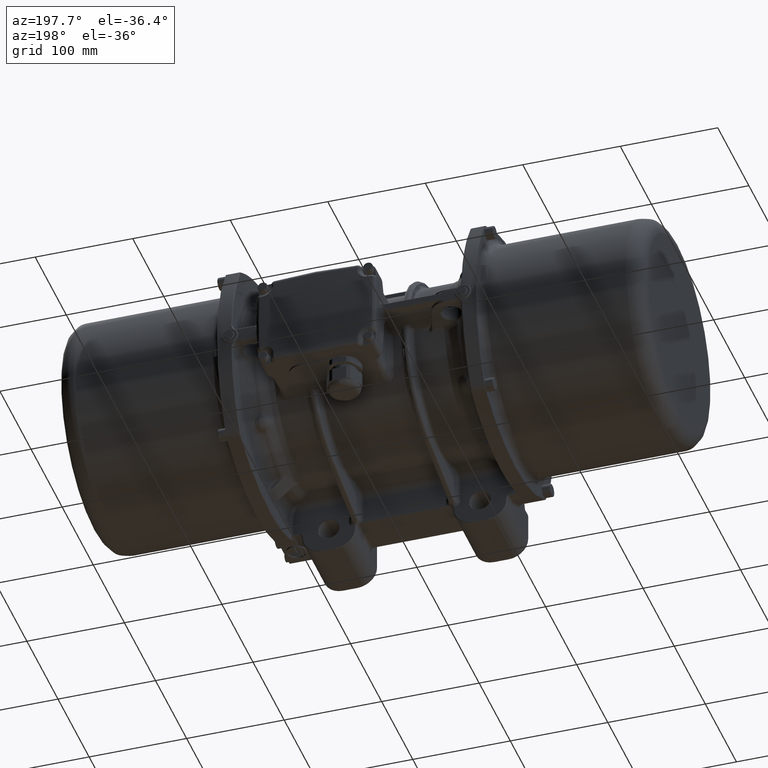
[diagram: clean part render]
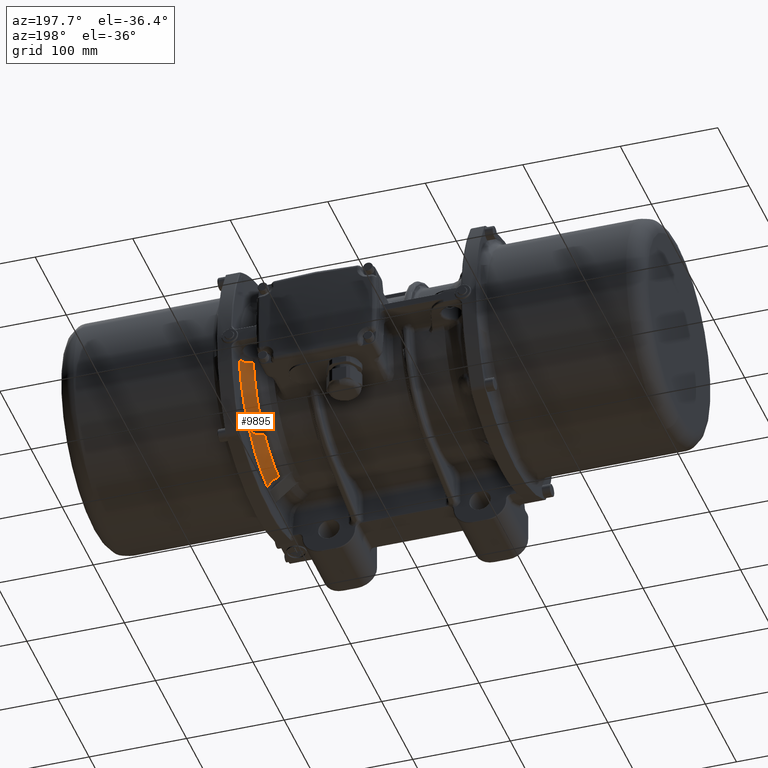
[diagram: same view with one face highlighted and labeled with its STEP entity id]
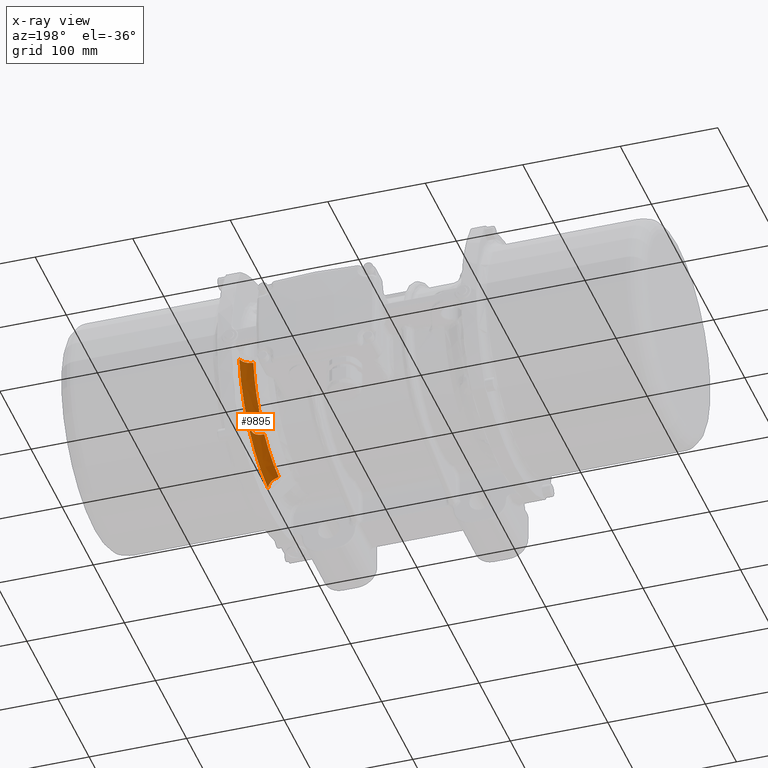
[diagram: x-ray of the same camera — body ghosted, the highlighted face saturated]
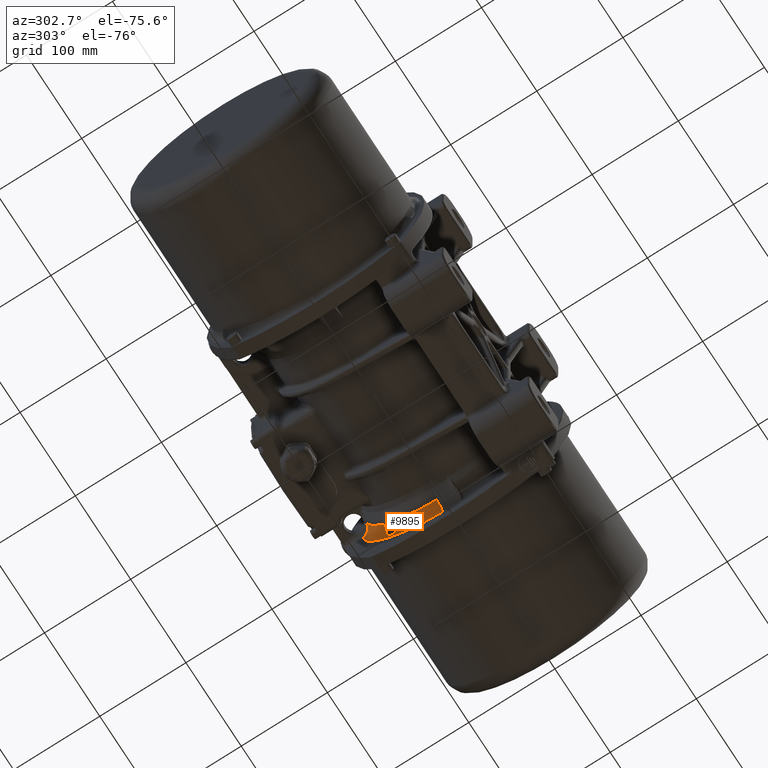
[diagram: same view with one face highlighted and labeled with its STEP entity id]
A machine part, auxiliary view. The second image highlights one B-rep face of the part: STEP entity #9895.
The next image is the same camera in x-ray: the body ghosted, the highlighted face saturated — about 0% of this face is hidden behind the body in this view.
A second angle (auxiliary view) of the same face is appended — the face is thin or edge-on in the first view.
In plain terms, the highlighted face is a freeform B-spline surface patch.
Its self-contained STEP definition (entity closure, byte-faithful):
#1053 = CARTESIAN_POINT ( 'NONE',  ( 113.2085367234987400, 12.72865508729004200, -97.77179666987382200 ) ) ;
#1216 = CARTESIAN_POINT ( 'NONE',  ( 115.6924195683543500, 12.85327116650494300, -101.5199832170023900 ) ) ;
#1306 = CARTESIAN_POINT ( 'NONE',  ( 115.0456479404417800, 66.46062155296611700, -76.08826538670540200 ) ) ;
#1793 = CARTESIAN_POINT ( 'NONE',  ( 115.4849371191992600, 67.91186726987470500, -75.92472277408859300 ) ) ;
#2041 = CARTESIAN_POINT ( 'NONE',  ( 116.5093884172309400, 12.89488209607921100, -104.4604505442959900 ) ) ;
#2284 = CARTESIAN_POINT ( 'NONE',  ( 116.0474154033128100, 71.34345714017104000, -74.68435912109596600 ) ) ;
#2524 = CARTESIAN_POINT ( 'NONE',  ( 112.4092689090385400, 12.70327555940107300, -97.02894738893010600 ) ) ;
#2767 = CARTESIAN_POINT ( 'NONE',  ( 109.2755947239767200, 59.78215694567543200, -74.99673937552256600 ) ) ;
#3247 = CARTESIAN_POINT ( 'NONE',  ( 115.2688622111241900, 67.14688110532209500, -76.02885295002546700 ) ) ;
#3724 = CARTESIAN_POINT ( 'NONE',  ( 115.8159773696523900, 75.51223875635831500, -69.51453560806702100 ) ) ;
#4136 = CARTESIAN_POINT ( 'NONE',  ( 107.1583161602825700, 59.06724688568512200, -74.72004599217388000 ) ) ;
#4216 = CARTESIAN_POINT ( 'NONE',  ( 115.8636785207333600, 75.40823012876991500, -69.81028979120434000 ) ) ;
#4466 = ORIENTED_EDGE ( 'NONE', *, *, #85909, .T. ) ;
#4706 = CARTESIAN_POINT ( 'NONE',  ( 113.0649028377313500, 75.82997643362095600, -62.78956955020832700 ) ) ;
#4771 = EDGE_CURVE ( 'NONE', #44368, #133070, #99168, .T. ) ;
#5030 = CARTESIAN_POINT ( 'NONE',  ( 109.8470326065824600, 95.33692520156785100, -12.78177568346776200 ) ) ;
#5200 = CARTESIAN_POINT ( 'NONE',  ( 112.8254671477698300, 75.77204018844743400, -62.49833559921073300 ) ) ;
#5393 = CARTESIAN_POINT ( 'NONE',  ( 116.6257580498605900, 105.6215036488068100, -13.46689872205086000 ) ) ;
#5523 = CARTESIAN_POINT ( 'NONE',  ( 105.7689292740000000, 94.20100722612170300, -12.70180587100849900 ) ) ;
#6019 = CARTESIAN_POINT ( 'NONE',  ( 115.6424288836742800, 101.3613632643896800, -13.19104417543176800 ) ) ;
#6522 = CARTESIAN_POINT ( 'NONE',  ( 107.1562485861531000, 94.39282680412279100, -12.71527441519379800 ) ) ;
#9895 = ADVANCED_FACE ( 'NONE', ( #33794 ), #98326, .T. ) ;
#11273 = CARTESIAN_POINT ( 'NONE',  ( 105.7689292740000400, 88.93135557700003300, -56.91446322899994900 ) ) ;
#11956 = CARTESIAN_POINT ( 'NONE',  ( 114.7845956682419800, 12.79629536098067900, -99.77732269074246600 ) ) ;
#12077 = EDGE_CURVE ( 'NONE', #32801, #77992, #80910, .T. ) ;
#12135 = CARTESIAN_POINT ( 'NONE',  ( 105.7689292740021900, 58.91350817186379600, -74.59466595998678400 ) ) ;
#12201 = CARTESIAN_POINT ( 'NONE',  ( 108.5672064910065200, 59.48614578480062700, -74.88438280080382000 ) ) ;
#12227 = VERTEX_POINT ( 'NONE', #60309 ) ;
#12432 = CARTESIAN_POINT ( 'NONE',  ( 109.5303393805830000, 12.63948486153464200, -95.20720641703459800 ) ) ;
#12438 = CARTESIAN_POINT ( 'NONE',  ( 116.6027746082115800, 12.82512133828957500, -105.2888057834025100 ) ) ;
#12677 = CARTESIAN_POINT ( 'NONE',  ( 114.2541623087342500, 64.63473359228929400, -76.07135131617501100 ) ) ;
#12920 = CARTESIAN_POINT ( 'NONE',  ( 112.4847631750245500, 12.70551229194114600, -97.09381825067711700 ) ) ;
#13173 = CARTESIAN_POINT ( 'NONE',  ( 112.7046624295041800, 62.36656981459183400, -75.74271043524790100 ) ) ;
#13658 = CARTESIAN_POINT ( 'NONE',  ( 113.5254066517639700, 63.41199090695394600, -75.93617967251495300 ) ) ;
#14161 = CARTESIAN_POINT ( 'NONE',  ( 114.4438493133447600, 65.01203154947464200, -76.09370081247432400 ) ) ;
#14657 = CARTESIAN_POINT ( 'NONE',  ( 112.8281475307411300, 62.50912698928762300, -75.77266145912761900 ) ) ;
#14931 = B_SPLINE_CURVE_WITH_KNOTS ( 'NONE', 3,
 ( #5523, #142749, #6522, #63149, #62182, #27860, #39802, #130798, #74599, #16893, #141762, #5030, #143725, #64123, #107886, #17908, #120860, #98004, #40302, #108377, #84570, #85054, #97506, #28341, #40796, #29343, #74116, #51198, #96511, #86550, #96027, #119374, #75093, #107385, #119871, #16412, #62666, #6019, #130301, #39304, #29833, #118885, #50708, #51703, #73621, #85552, #17400, #97009, #143234, #120371, #108877, #28845 ),
 .UNSPECIFIED., .F., .F.,
 ( 4, 2, 2, 2, 1, 1, 1, 2, 2, 2, 2, 2, 1, 1, 1, 1, 2, 2, 2, 2, 2, 1, 1, 1, 1, 1, 2, 2, 2, 2, 2, 4 ),
 ( 0.0000000000000000000, 0.1250000000002855800, 0.1875000000004271900, 0.2187500000004976000, 0.2343750000005332700, 0.2421875000005495300, 0.2460937500005560800, 0.2480468750005604400, 0.2500000000005647700, 0.3750000000007054900, 0.4375000000007758800, 0.4687500000008101900, 0.4843750000008272800, 0.4921875000008350000, 0.4960937500008372700, 0.4980468750008376600, 0.4990234375008386100, 0.5000000000008395500, 0.6250000000008016900, 0.6875000000007810400, 0.7187500000007692700, 0.7343750000007629500, 0.7421875000007611700, 0.7460937500007606100, 0.7480468750007602800, 0.7490234375007596100, 0.7495117187507588400, 0.7500000000007580600, 0.8125000000005686600, 0.8750000000003791400, 0.9375000000001896300, 1.000000000000000000 ),
 .UNSPECIFIED. ) ;
#15162 = CARTESIAN_POINT ( 'NONE',  ( 113.5670643927831800, 75.94420365115452400, -63.48404219876263700 ) ) ;
#15639 = CARTESIAN_POINT ( 'NONE',  ( 113.3460045639169200, 75.89480512416014300, -63.16915160495476300 ) ) ;
#16103 = CARTESIAN_POINT ( 'NONE',  ( 114.4998661867530700, 76.09871464139669700, -65.12945061224992600 ) ) ;
#16412 = CARTESIAN_POINT ( 'NONE',  ( 115.5275435704971200, 101.1034935440168900, -13.17398092070036600 ) ) ;
#16578 = CARTESIAN_POINT ( 'NONE',  ( 116.1025441643357000, 74.21673444920554600, -72.07944309839938100 ) ) ;
#16893 = CARTESIAN_POINT ( 'NONE',  ( 109.7434384849688200, 95.28746547247519100, -12.77831076783435200 ) ) ;
#17065 = CARTESIAN_POINT ( 'NONE',  ( 113.8268354104330800, 75.99863422134265500, -63.88314257038702200 ) ) ;
#17400 = CARTESIAN_POINT ( 'NONE',  ( 116.4107861003408600, 103.7980840325082300, -13.35109184378053900 ) ) ;
#17908 = CARTESIAN_POINT ( 'NONE',  ( 111.0774208347199400, 95.99593046183598200, -12.82768450117422500 ) ) ;
#18666 = EDGE_CURVE ( 'NONE', #12227, #86732, #124592, .T. ) ;
#20768 = CARTESIAN_POINT ( 'NONE',  ( 116.2344376878094000, 12.90429581700630000, -103.1128774080502000 ) ) ;
#22214 = CARTESIAN_POINT ( 'NONE',  ( 116.6257580500000000, 105.7251378879999900, -12.62753394200000100 ) ) ;
#22769 = DIRECTION ( 'NONE',  ( 1.000000000000000000, -3.426983195025550000E-016, 3.449907649820270100E-016 ) ) ;
#23203 = CARTESIAN_POINT ( 'NONE',  ( 112.0235396610000200, 89.48572141499997200, -57.26924736400004400 ) ) ;
#24138 = CARTESIAN_POINT ( 'NONE',  ( 115.2624608765040900, 67.12577550240770600, -76.03119903056175100 ) ) ;
#24212 = DIRECTION ( 'NONE',  ( 1.000000000000000000, -3.426983195025550000E-016, 3.449907649820270100E-016 ) ) ;
#24365 = CARTESIAN_POINT ( 'NONE',  ( 109.7604735408194600, 12.64318762108856100, -95.31204990280501500 ) ) ;
#24611 = CARTESIAN_POINT ( 'NONE',  ( 115.1795187826581800, 66.85945864617133300, -76.05828591884242900 ) ) ;
#24840 = CARTESIAN_POINT ( 'NONE',  ( 111.3945241644545100, 12.67555917642235600, -96.23355780519580100 ) ) ;
#24848 = CARTESIAN_POINT ( 'NONE',  ( 116.2344376878094000, 12.90429581700630000, -103.1128774080502000 ) ) ;
#25106 = CARTESIAN_POINT ( 'NONE',  ( 116.1236974356189600, 72.53527995079718900, -73.86844604917391200 ) ) ;
#25622 = CARTESIAN_POINT ( 'NONE',  ( 115.7558101056249300, 69.17307313481315100, -75.62050430452340800 ) ) ;
#26103 = CARTESIAN_POINT ( 'NONE',  ( 113.7364512477582000, 63.73093005205968400, -75.98192202396492700 ) ) ;
#26575 = CARTESIAN_POINT ( 'NONE',  ( 115.3347716342272800, 76.00185483477605400, -67.37014132495293900 ) ) ;
#27062 = CARTESIAN_POINT ( 'NONE',  ( 115.7266801116852500, 75.67627870602014200, -69.00296011884410100 ) ) ;
#27266 = EDGE_CURVE ( 'NONE', #67572, #107022, #14931, .T. ) ;
#27545 = CARTESIAN_POINT ( 'NONE',  ( 115.4845978186283900, 75.91837939330386600, -67.92162117050381200 ) ) ;
#27666 = VERTEX_POINT ( 'NONE', #37664 ) ;
#27860 = CARTESIAN_POINT ( 'NONE',  ( 109.0507503462777400, 94.98679808546023700, -12.75717342948315800 ) ) ;
#27928 = EDGE_CURVE ( 'NONE', #44368, #107022, #74552, .T. ) ;
#28024 = CARTESIAN_POINT ( 'NONE',  ( 114.7748249885918500, 76.11037743069667300, -65.75009837381352900 ) ) ;
#28341 = CARTESIAN_POINT ( 'NONE',  ( 113.2801233700984500, 97.82137108371992400, -12.95358794925820000 ) ) ;
#28516 = CARTESIAN_POINT ( 'NONE',  ( 114.1181769681526100, 76.05310059519209200, -64.37103859994928700 ) ) ;
#28781 = CARTESIAN_POINT ( 'NONE',  ( 116.0687269963381300, 12.88576234739231600, -102.5310901904489900 ) ) ;
#28845 = CARTESIAN_POINT ( 'NONE',  ( 116.6257580498605900, 105.6215036488068100, -13.46689872205086000 ) ) ;
#28945 = B_SPLINE_CURVE_WITH_KNOTS ( 'NONE', 3,
 ( #68407, #12201, #2767, #80798, #126099, #81281, #104171, #70869, #82781, #128055, #138472, #69382, #36553, #13173, #14657, #139461, #57946, #48435, #92271, #13658, #26103, #58424, #82282, #12677, #137481, #92761, #36065, #14161, #94236, #59899, #70373, #1306, #116103, #24611, #105647, #71362, #24138, #3247, #103676, #1793, #93739, #35566, #115111, #37516, #25622, #46950, #81785, #69887, #137975, #115599, #93253, #126588, #47932, #46455, #2284, #47433, #127084, #58914, #25106, #127568, #59418, #138964, #105158, #37049, #116590, #16578, #49419, #84258, #129991, #71860, #118084, #96194, #84741, #108058, #4216, #106117, #3724, #60379, #141441, #140434, #27062, #61862, #83282, #27545, #117087, #39482, #26575, #106595, #85229, #117585, #60869, #95214, #28024, #38014, #96695, #38497, #16103, #107564, #72335, #28516, #17065, #141936, #15162, #73310, #83768, #15639, #4706, #5200, #119057, #49890, #50885, #130481, #107084, #129017, #129502, #61369, #140931, #72812, #94723 ),
 .UNSPECIFIED., .F., .F.,
 ( 4, 2, 2, 2, 2, 2, 2, 2, 2, 2, 2, 2, 1, 2, 2, 2, 2, 1, 1, 2, 2, 2, 2, 1, 2, 2, 2, 2, 1, 2, 2, 2, 2, 2, 2, 2, 2, 2, 2, 2, 1, 1, 2, 2, 2, 2, 1, 2, 2, 2, 2, 1, 2, 2, 2, 2, 2, 2, 2, 2, 2, 2, 2, 4 ),
 ( 0.0000000000000000000, 0.06250000000001906800, 0.09375000000002922700, 0.1093750000000342100, 0.1171875000000366900, 0.1250000000000391900, 0.1562500000000503500, 0.1718750000000554000, 0.1796875000000577900, 0.1875000000000601700, 0.2187500000000675600, 0.2343750000000715500, 0.2421875000000728300, 0.2460937500000729400, 0.2500000000000730500, 0.2812500000000788800, 0.2968750000000825500, 0.3046875000000843800, 0.3085937500000853200, 0.3105468750000853800, 0.3125000000000853800, 0.3437500000000937000, 0.3593750000000980900, 0.3671875000000997500, 0.3710937500001001400, 0.3750000000001004800, 0.4062500000000975900, 0.4218750000000957000, 0.4296875000000942600, 0.4335937500000943100, 0.4375000000000943700, 0.4687500000000923200, 0.4843750000000916500, 0.5000000000000909300, 0.5312500000000895900, 0.5468750000000893700, 0.5546875000000893700, 0.5625000000000894800, 0.5937500000000905900, 0.6093750000000909300, 0.6171875000000909300, 0.6210937500000908200, 0.6230468750000912600, 0.6250000000000917000, 0.6562500000000838200, 0.6718750000000804900, 0.6796875000000780500, 0.6835937500000773800, 0.6875000000000766100, 0.7187500000000688300, 0.7343750000000649500, 0.7421875000000625100, 0.7460937500000611700, 0.7500000000000599500, 0.7812500000000526200, 0.7968750000000490700, 0.8046875000000477400, 0.8125000000000465200, 0.8437500000000379700, 0.8593750000000341900, 0.8671875000000322000, 0.8750000000000302000, 0.9375000000000151000, 1.000000000000000000 ),
 .UNSPECIFIED. ) ;
#29343 = CARTESIAN_POINT ( 'NONE',  ( 113.3215757606464700, 97.86466865347675500, -12.95654566168301800 ) ) ;
#29833 = CARTESIAN_POINT ( 'NONE',  ( 115.6745987745119500, 101.4361838598185400, -13.19598401251730400 ) ) ;
#31205 = CARTESIAN_POINT ( 'NONE',  ( 105.7689292740021900, 74.59466595994729200, -58.91350817194519600 ) ) ;
#32801 = VERTEX_POINT ( 'NONE', #124664 ) ;
#32881 = CARTESIAN_POINT ( 'NONE',  ( 107.8305861490124000, 74.79846439196440100, -59.26712605697180400 ) ) ;
#33182 = CARTESIAN_POINT ( 'NONE',  ( 107.8305861490210000, 59.26712605695300300, -74.79846439194059800 ) ) ;
#33375 = CARTESIAN_POINT ( 'NONE',  ( 105.7689292740021900, 74.59466595994729200, -58.91350817194519600 ) ) ;
#33794 = FACE_OUTER_BOUND ( 'NONE', #70185, .T. ) ;
#35122 = CARTESIAN_POINT ( 'NONE',  ( 116.3517142660000300, 59.36961864100003100, -94.14424282999999600 ) ) ;
#35186 = DIRECTION ( 'NONE',  ( 2.919995480118922800E-016, 0.0000000000000000000, -1.000000000000000000 ) ) ;
#35319 = CARTESIAN_POINT ( 'NONE',  ( 114.8138338253094600, 12.79784466844543400, -99.82401984490626000 ) ) ;
#35566 = CARTESIAN_POINT ( 'NONE',  ( 115.6506061505663800, 68.63780164360230200, -75.76744599624073800 ) ) ;
#35617 = CARTESIAN_POINT ( 'NONE',  ( 105.7689292740000000, 10.64331759200000100, -94.45573262300000300 ) ) ;
#36065 = CARTESIAN_POINT ( 'NONE',  ( 114.4238591711014000, 64.97085001496333200, -76.09171400721673700 ) ) ;
#36304 = CARTESIAN_POINT ( 'NONE',  ( 112.4043647564856900, 12.70313107393272900, -97.02476239694236400 ) ) ;
#36553 = CARTESIAN_POINT ( 'NONE',  ( 112.3232694777879200, 61.94929365967132600, -75.64998058362908800 ) ) ;
#37049 = CARTESIAN_POINT ( 'NONE',  ( 116.1305681046803100, 73.75530096276001800, -72.68324188010974800 ) ) ;
#37516 = CARTESIAN_POINT ( 'NONE',  ( 115.7311565911732300, 69.04015691353268400, -75.65995820462691800 ) ) ;
#37664 = CARTESIAN_POINT ( 'NONE',  ( 105.7689292740000000, 12.60397677399866200, -94.21414651869560000 ) ) ;
#38014 = CARTESIAN_POINT ( 'NONE',  ( 114.6606855100158800, 76.10829844855403800, -65.48346299855009500 ) ) ;
#38497 = CARTESIAN_POINT ( 'NONE',  ( 114.5410735248992800, 76.10186480191094900, -65.21776630305612300 ) ) ;
#39238 = CARTESIAN_POINT ( 'NONE',  ( 116.1573921100688600, 12.89509911121240300, -102.8219270184189800 ) ) ;
#39304 = CARTESIAN_POINT ( 'NONE',  ( 115.6705943044634600, 101.4268030982193800, -13.19536496080861600 ) ) ;
#39482 = CARTESIAN_POINT ( 'NONE',  ( 115.3743934227063300, 75.98352403965208200, -67.50867925239411700 ) ) ;
#39802 = CARTESIAN_POINT ( 'NONE',  ( 109.2201147299977500, 95.05522321280739100, -12.76199464769679700 ) ) ;
#40302 = CARTESIAN_POINT ( 'NONE',  ( 112.6591078575383000, 97.21971924051897000, -12.91230643836823700 ) ) ;
#40796 = CARTESIAN_POINT ( 'NONE',  ( 113.3091546373248700, 97.85165365542431500, -12.95565678200214800 ) ) ;
#41744 = AXIS2_PLACEMENT_3D ( 'NONE', #84352, #24212, #138554 ) ;
#44275 = CARTESIAN_POINT ( 'NONE',  ( 107.1583143728737800, 74.72004578385643500, -59.06724635433086200 ) ) ;
#44368 = VERTEX_POINT ( 'NONE', #80476 ) ;
#45265 = CARTESIAN_POINT ( 'NONE',  ( 116.2344376878094000, 12.90429581700630000, -103.1128774080502000 ) ) ;
#46116 = ORIENTED_EDGE ( 'NONE', *, *, #27266, .T. ) ;
#46455 = CARTESIAN_POINT ( 'NONE',  ( 116.0400102507984500, 71.26096751038068100, -74.73175961701548400 ) ) ;
#46950 = CARTESIAN_POINT ( 'NONE',  ( 115.7719225488324400, 69.26149316466893400, -75.59364133324416500 ) ) ;
#47177 = CARTESIAN_POINT ( 'NONE',  ( 114.7988847441432900, 12.79705122858249800, -99.80010622951329000 ) ) ;
#47182 = CARTESIAN_POINT ( 'NONE',  ( 116.5543609923127000, 12.87359182960923400, -104.7972835924377600 ) ) ;
#47433 = CARTESIAN_POINT ( 'NONE',  ( 116.0509023833151000, 71.38337116634281200, -74.66105131787259100 ) ) ;
#47679 = CARTESIAN_POINT ( 'NONE',  ( 115.0518247765995300, 12.81098905156045100, -100.2200389263824600 ) ) ;
#47932 = CARTESIAN_POINT ( 'NONE',  ( 116.0285561846484500, 71.13678204221159300, -74.80193440289627900 ) ) ;
#48435 = CARTESIAN_POINT ( 'NONE',  ( 113.1830205698525400, 62.95069972830715000, -75.85712976005001500 ) ) ;
#48539 = CIRCLE ( 'NONE', #41744, 95.05348828313430000 ) ;
#49419 = CARTESIAN_POINT ( 'NONE',  ( 116.0873731607872700, 74.37798899696738900, -71.84288734513786800 ) ) ;
#49756 = CARTESIAN_POINT ( 'NONE',  ( 114.8485408636124600, 12.79970162320444300, -99.87997538727484000 ) ) ;
#49890 = CARTESIAN_POINT ( 'NONE',  ( 112.3140086165103600, 75.64763920665733100, -61.94707864010315700 ) ) ;
#50708 = CARTESIAN_POINT ( 'NONE',  ( 115.6781284572829800, 101.4444632288182800, -13.19653033472551600 ) ) ;
#50851 = DIRECTION ( 'NONE',  ( 0.0000000000000000000, 0.0000000000000000000, -1.000000000000000000 ) ) ;
#50885 = CARTESIAN_POINT ( 'NONE',  ( 112.1128055381683300, 75.59894326895889100, -61.74973465657007000 ) ) ;
#51198 = CARTESIAN_POINT ( 'NONE',  ( 113.3351847184647200, 97.87896002483996900, -12.95752156351152900 ) ) ;
#51703 = CARTESIAN_POINT ( 'NONE',  ( 115.9107372798590900, 101.9912985019172400, -13.23260850937683300 ) ) ;
#53723 = CARTESIAN_POINT ( 'NONE',  ( 115.5085659545516000, 12.83984702354045200, -101.0980698595079300 ) ) ;
#56516 = CARTESIAN_POINT ( 'NONE',  ( 116.6257580500000000, 11.92238120800000100, -105.8069762410000000 ) ) ;
#57198 = CARTESIAN_POINT ( 'NONE',  ( 112.6490083986965700, 12.71049113962360800, -97.23885819976600000 ) ) ;
#57703 = CARTESIAN_POINT ( 'NONE',  ( 110.6141772389140400, 12.65882256707266900, -95.75688804513734500 ) ) ;
#57946 = CARTESIAN_POINT ( 'NONE',  ( 113.0668673377792600, 62.80162482890798300, -75.82975053748258200 ) ) ;
#58175 = CARTESIAN_POINT ( 'NONE',  ( 105.7689292740000000, 12.60397677399866200, -94.21414651869560000 ) ) ;
#58424 = CARTESIAN_POINT ( 'NONE',  ( 114.0278335054011100, 64.22014878792724300, -76.03615013602610900 ) ) ;
#58466 = CARTESIAN_POINT ( 'NONE',  ( 105.7689292740000000, 94.38267409899999900, -11.27281973399999900 ) ) ;
#58914 = CARTESIAN_POINT ( 'NONE',  ( 116.1034895586763700, 72.08227644742980500, -74.21878658058571400 ) ) ;
#59159 = CARTESIAN_POINT ( 'NONE',  ( 112.5730593854889200, 12.70816210282336600, -97.17087758574986400 ) ) ;
#59330 = CARTESIAN_POINT ( 'NONE',  ( 106.4652653924865000, 58.94879773355105400, -74.65085474569373500 ) ) ;
#59418 = CARTESIAN_POINT ( 'NONE',  ( 116.1353157096312600, 72.96591495716714300, -73.49767353425228600 ) ) ;
#59899 = CARTESIAN_POINT ( 'NONE',  ( 114.7804194893942100, 65.75429766876232000, -76.11382331494954200 ) ) ;
#60309 = CARTESIAN_POINT ( 'NONE',  ( 107.8305861490124000, 74.79846439196440100, -59.26712605697180400 ) ) ;
#60379 = CARTESIAN_POINT ( 'NONE',  ( 115.8042071152568400, 75.53497434209090500, -69.44554852852726900 ) ) ;
#60667 = ORIENTED_EDGE ( 'NONE', *, *, #126095, .T. ) ;
#60869 = CARTESIAN_POINT ( 'NONE',  ( 115.0512852527434700, 76.09161612398615700, -66.46520035419821700 ) ) ;
#61369 = CARTESIAN_POINT ( 'NONE',  ( 110.5954147658001300, 75.24640845658228700, -60.50956484901679700 ) ) ;
#61829 = CARTESIAN_POINT ( 'NONE',  ( 116.6257580500211900, 1.615166334012485000E-010, -9.117966798255489400E-011 ) ) ;
#61862 = CARTESIAN_POINT ( 'NONE',  ( 115.6552405529669400, 75.76995214782520800, -68.64643759544672700 ) ) ;
#62182 = CARTESIAN_POINT ( 'NONE',  ( 108.5397035895345800, 94.79370393231398900, -12.74355746878158300 ) ) ;
#62666 = CARTESIAN_POINT ( 'NONE',  ( 115.6045230099686000, 101.2747133235855400, -13.18531699424875800 ) ) ;
#63149 = CARTESIAN_POINT ( 'NONE',  ( 108.1950713966904800, 94.68124212153443900, -12.73561430224565200 ) ) ;
#64123 = CARTESIAN_POINT ( 'NONE',  ( 109.8791257106602300, 95.35244552997791300, -12.78286229953410200 ) ) ;
#67572 = VERTEX_POINT ( 'NONE', #94252 ) ;
#68407 = CARTESIAN_POINT ( 'NONE',  ( 107.8305861490210000, 59.26712605695300300, -74.79846439194059800 ) ) ;
#68646 = CARTESIAN_POINT ( 'NONE',  ( 109.3660789024822900, 12.63694129015004600, -95.13542647133593300 ) ) ;
#69122 = CARTESIAN_POINT ( 'NONE',  ( 113.4125820381888300, 12.73590020952160500, -97.98523871333769400 ) ) ;
#69382 = CARTESIAN_POINT ( 'NONE',  ( 112.0543902433532100, 61.68497152600946300, -75.58432500681271900 ) ) ;
#69887 = CARTESIAN_POINT ( 'NONE',  ( 115.8514230505170000, 69.71296645295873900, -75.45043526981149300 ) ) ;
#70185 = EDGE_LOOP ( 'NONE', ( #60667, #46116, #146298, #143766, #94388, #77534, #133968, #4466, #123738 ) ) ;
#70373 = CARTESIAN_POINT ( 'NONE',  ( 114.9821305092018800, 66.28369622259485500, -76.09728328767894800 ) ) ;
#70614 = CARTESIAN_POINT ( 'NONE',  ( 109.9577879193157500, 12.64658114574331900, -95.40849326529577500 ) ) ;
#70869 = CARTESIAN_POINT ( 'NONE',  ( 111.4158634371277800, 61.13647077640121800, -75.43394417705118800 ) ) ;
#71362 = CARTESIAN_POINT ( 'NONE',  ( 115.2488979982523200, 67.08137593955120800, -76.03602156029434400 ) ) ;
#71860 = CARTESIAN_POINT ( 'NONE',  ( 116.0632553188706000, 74.58497810893641100, -71.51813496947467300 ) ) ;
#72335 = CARTESIAN_POINT ( 'NONE',  ( 114.2956377426109500, 76.07987857793554600, -64.70342391662003900 ) ) ;
#72812 = CARTESIAN_POINT ( 'NONE',  ( 108.5662049932723200, 74.88426598650322300, -59.48584801036518100 ) ) ;
#73310 = CARTESIAN_POINT ( 'NONE',  ( 113.5131553980553000, 75.93238769291924900, -63.40512799882363700 ) ) ;
#73621 = CARTESIAN_POINT ( 'NONE',  ( 116.0776509162968600, 102.4933182048195300, -13.26581685571355800 ) ) ;
#73880 = CARTESIAN_POINT ( 'NONE',  ( 115.8647501001909900, 12.86715313954290000, -101.9526931814134800 ) ) ;
#74116 = CARTESIAN_POINT ( 'NONE',  ( 113.3298518538215100, 97.87335348003139800, -12.95713874404542800 ) ) ;
#74552 = CIRCLE ( 'NONE', #121983, 106.4765673517520100 ) ;
#74599 = CARTESIAN_POINT ( 'NONE',  ( 109.5978439662336300, 95.21971520721511700, -12.77355902700233700 ) ) ;
#75093 = CARTESIAN_POINT ( 'NONE',  ( 115.2269823321139800, 100.4977937074677600, -13.13366733502035900 ) ) ;
#77534 = ORIENTED_EDGE ( 'NONE', *, *, #143617, .T. ) ;
#77992 = VERTEX_POINT ( 'NONE', #33182 ) ;
#79453 = CARTESIAN_POINT ( 'NONE',  ( 115.1621352097032100, 12.81757994068583400, -100.4191485412323600 ) ) ;
#79877 = CARTESIAN_POINT ( 'NONE',  ( 112.0235396609999700, 10.70966417599999900, -95.04453542499995000 ) ) ;
#80075 = CARTESIAN_POINT ( 'NONE',  ( 116.6257580500020100, 12.76241829497562100, -105.7089403701842100 ) ) ;
#80476 = CARTESIAN_POINT ( 'NONE',  ( 116.6257580500020100, 12.76241829497562100, -105.7089403701842100 ) ) ;
#80557 = CARTESIAN_POINT ( 'NONE',  ( 111.9064745477462400, 12.68849362960471100, -96.60101741402569100 ) ) ;
#80561 = CARTESIAN_POINT ( 'NONE',  ( 116.3563315748298000, 12.91884395066950700, -103.5731905671209000 ) ) ;
#80798 = CARTESIAN_POINT ( 'NONE',  ( 110.2680728015300700, 60.32934770787405700, -75.18452618878049500 ) ) ;
#80834 = CARTESIAN_POINT ( 'NONE',  ( 112.0235396609999700, 94.97102148000000500, -11.34309040600000200 ) ) ;
#80910 = B_SPLINE_CURVE_WITH_KNOTS ( 'NONE', 3,
 ( #12135, #59330, #4136, #93659 ),
 .UNSPECIFIED., .F., .F.,
 ( 4, 4 ),
 ( 0.0000000000000000000, 1.000000000000000000 ),
 .UNSPECIFIED. ) ;
#81028 = CARTESIAN_POINT ( 'NONE',  ( 112.4407028755589700, 12.70420373496754800, -97.05584599041651500 ) ) ;
#81035 = CARTESIAN_POINT ( 'NONE',  ( 116.5720741655599700, 12.85890001772033400, -104.9623645010252100 ) ) ;
#81281 = CARTESIAN_POINT ( 'NONE',  ( 111.0465123457076300, 60.85183156044659100, -75.35016868139820200 ) ) ;
#81535 = CARTESIAN_POINT ( 'NONE',  ( 116.5028854666270100, 12.89712175109000800, -104.4162114658193300 ) ) ;
#81785 = CARTESIAN_POINT ( 'NONE',  ( 115.7795710483683100, 69.30420760680694100, -75.58037474407980500 ) ) ;
#82020 = CARTESIAN_POINT ( 'NONE',  ( 109.3332417076720700, 12.63644149107896200, -95.12134783922553500 ) ) ;
#82282 = CARTESIAN_POINT ( 'NONE',  ( 114.1207709333393900, 64.38502707845897500, -76.05183504113944100 ) ) ;
#82781 = CARTESIAN_POINT ( 'NONE',  ( 111.4881975704584400, 61.19509247152467400, -75.45067346777281600 ) ) ;
#83282 = CARTESIAN_POINT ( 'NONE',  ( 115.5295766123951600, 75.88451203022040700, -68.10380367085259900 ) ) ;
#83768 = CARTESIAN_POINT ( 'NONE',  ( 113.4031316695733800, 75.90780516455289700, -63.24836621387983400 ) ) ;
#84258 = CARTESIAN_POINT ( 'NONE',  ( 116.0818582031835300, 74.43061261000559600, -71.76307874639474000 ) ) ;
#84352 = CARTESIAN_POINT ( 'NONE',  ( 105.7689292740000000, -3.785296728842090300E-010, -1.927746157148745100E-010 ) ) ;
#84570 = CARTESIAN_POINT ( 'NONE',  ( 113.0028461962766800, 97.54240352522732800, -12.93448585692373600 ) ) ;
#84741 = CARTESIAN_POINT ( 'NONE',  ( 115.9283864889053200, 75.23291902224794100, -70.25623775735809300 ) ) ;
#85054 = CARTESIAN_POINT ( 'NONE',  ( 113.1046023287486100, 97.64208428953892800, -12.94132260070846000 ) ) ;
#85131 = CARTESIAN_POINT ( 'NONE',  ( 115.3756695189436500, 12.83086051961025100, -100.8224388129929100 ) ) ;
#85229 = CARTESIAN_POINT ( 'NONE',  ( 115.2938198929747000, 76.01931437273501000, -67.22999527829337300 ) ) ;
#85552 = CARTESIAN_POINT ( 'NONE',  ( 116.3276094088844800, 103.3965583256174300, -13.32503741088968700 ) ) ;
#85909 = EDGE_CURVE ( 'NONE', #77992, #12227, #28945, .T. ) ;
#86550 = CARTESIAN_POINT ( 'NONE',  ( 114.1252147336017400, 98.76389223488523300, -13.01740005972377800 ) ) ;
#86732 = VERTEX_POINT ( 'NONE', #31205 ) ;
#90861 = CARTESIAN_POINT ( 'NONE',  ( 116.3517142660000300, 93.74633178300010200, -59.99596113700002300 ) ) ;
#90913 = CARTESIAN_POINT ( 'NONE',  ( 105.7689292740000000, -3.785296728842090300E-010, -1.927746157148745100E-010 ) ) ;
#91349 = CARTESIAN_POINT ( 'NONE',  ( 116.3517142660000300, 11.21957464599999600, -99.56981305300001800 ) ) ;
#91549 = CARTESIAN_POINT ( 'NONE',  ( 109.4153425367976400, 12.63769527229597500, -95.15667830998735600 ) ) ;
#92011 = CARTESIAN_POINT ( 'NONE',  ( 112.4218397739143700, 12.70364637351011600, -97.03969102149989100 ) ) ;
#92016 = CARTESIAN_POINT ( 'NONE',  ( 116.4411751930773000, 12.91687712684693200, -104.0045382078143800 ) ) ;
#92271 = CARTESIAN_POINT ( 'NONE',  ( 113.2391825537288100, 63.02468370926286700, -75.87024103704118300 ) ) ;
#92497 = CARTESIAN_POINT ( 'NONE',  ( 114.0184017612663800, 12.75916234879119500, -98.67094717046178700 ) ) ;
#92761 = CARTESIAN_POINT ( 'NONE',  ( 114.3823470132309600, 64.88647542289980700, -76.08728628665043900 ) ) ;
#93004 = CARTESIAN_POINT ( 'NONE',  ( 106.9464178970668800, 12.60801157146015900, -94.32614961785701300 ) ) ;
#93253 = CARTESIAN_POINT ( 'NONE',  ( 115.9895028469838700, 70.75844864211663300, -75.00040658343819200 ) ) ;
#93659 = CARTESIAN_POINT ( 'NONE',  ( 107.8305861490210000, 59.26712605695300300, -74.79846439194059800 ) ) ;
#93739 = CARTESIAN_POINT ( 'NONE',  ( 115.6115325086411000, 68.45729811155686700, -75.81003660440849500 ) ) ;
#94236 = CARTESIAN_POINT ( 'NONE',  ( 114.6310598576794500, 65.40318057245977500, -76.11079752650520900 ) ) ;
#94252 = CARTESIAN_POINT ( 'NONE',  ( 105.7689292740000000, 94.20100722612170300, -12.70180587100849900 ) ) ;
#94388 = ORIENTED_EDGE ( 'NONE', *, *, #134250, .T. ) ;
#94723 = CARTESIAN_POINT ( 'NONE',  ( 107.8305861490124000, 74.79846439196440100, -59.26712605697180400 ) ) ;
#95214 = CARTESIAN_POINT ( 'NONE',  ( 114.8468083949909000, 76.10838889006467400, -65.92852283049335000 ) ) ;
#96027 = CARTESIAN_POINT ( 'NONE',  ( 114.7347953382669600, 99.65201202447944700, -13.07704075080780400 ) ) ;
#96194 = CARTESIAN_POINT ( 'NONE',  ( 115.9943738575521800, 74.99999380364708700, -70.77762799473704500 ) ) ;
#96511 = CARTESIAN_POINT ( 'NONE',  ( 113.7139588533152300, 98.27763716019643400, -12.98474135642632800 ) ) ;
#96695 = CARTESIAN_POINT ( 'NONE',  ( 114.6020747528124100, 76.10599431523751000, -65.35039614063927600 ) ) ;
#97009 = CARTESIAN_POINT ( 'NONE',  ( 116.5286305931452400, 104.4960227374781600, -13.39590462164582300 ) ) ;
#97506 = CARTESIAN_POINT ( 'NONE',  ( 113.2218681613910600, 97.76114947514157900, -12.94947126412293900 ) ) ;
#98004 = CARTESIAN_POINT ( 'NONE',  ( 112.2380201225945900, 96.85308395102288200, -12.88702866927673400 ) ) ;
#98326 =( BOUNDED_SURFACE ( )  B_SPLINE_SURFACE ( 3, 3, ( 
 ( #58466, #11273, #103718, #35617 ),
 ( #80834, #23203, #103245, #79877 ),
 ( #102278, #90861, #35122, #91349 ),
 ( #22214, #101780, #137527, #56516 ) ),
 .UNSPECIFIED., .F., .F., .F. ) 
 B_SPLINE_SURFACE_WITH_KNOTS ( ( 4, 4 ),
 ( 4, 4 ),
 ( 0.0000000000000000000, 1.000000000000000000 ),
 ( 0.0000000000000000000, 1.000000000000000000 ),
 .UNSPECIFIED. ) 
 GEOMETRIC_REPRESENTATION_ITEM ( )  RATIONAL_B_SPLINE_SURFACE ( (
 ( 1.000000000000000000, 0.8559401237527419800, 0.8559401237527419800, 1.000000000000000000),
 ( 0.8361360748242580000, 0.7156824153592069600, 0.7156824153592069600, 0.8361360748242580000),
 ( 0.8361360748242580000, 0.7156824153592069600, 0.7156824153592069600, 0.8361360748242580000),
 ( 1.000000000000000000, 0.8559401237527419800, 0.8559401237527419800, 1.000000000000000000) ) ) 
 REPRESENTATION_ITEM ( '' )  SURFACE ( )  );
#98426 = AXIS2_PLACEMENT_3D ( 'NONE', #90913, #22769, #35186 ) ;
#99168 = B_SPLINE_CURVE_WITH_KNOTS ( 'NONE', 3,
 ( #80075, #115349, #12438, #81035, #47182, #102473, #126837, #2041, #114861, #81535, #92016, #80561, #24848 ),
 .UNSPECIFIED., .F., .F.,
 ( 4, 2, 1, 1, 1, 2, 2, 4 ),
 ( 0.0000000000000000000, 0.2500000000001116900, 0.3750000000001676400, 0.4375000000001879600, 0.4687500000002066100, 0.4843750000002095000, 0.5000000000002123900, 1.000000000000000000 ),
 .UNSPECIFIED. ) ;
#101477 = B_SPLINE_CURVE_WITH_KNOTS ( 'NONE', 3,
 ( #45265, #39238, #28781, #147588, #73880, #135427, #1216, #53723, #85131, #79453, #47679, #140294, #49756, #35319, #47177, #103912, #11956, #125370, #92497, #69122, #1053, #104398, #138705, #57198, #59159, #12920, #81028, #92011, #2524, #36304, #80557, #24840, #57703, #136741, #70614, #24365, #12432, #91549, #68646, #82020, #137731, #115836, #93004, #58175 ),
 .UNSPECIFIED., .F., .F.,
 ( 4, 2, 2, 2, 2, 1, 1, 1, 1, 2, 2, 2, 2, 2, 1, 1, 1, 2, 2, 2, 2, 1, 1, 1, 2, 2, 4 ),
 ( 0.0000000000000000000, 0.06250000000010291800, 0.09375000000015258600, 0.1250000000002022500, 0.1875000000002978700, 0.2187500000003444200, 0.2343750000003684000, 0.2421875000003796400, 0.2460937500003852800, 0.2480468750003868600, 0.2500000000003884100, 0.3750000000004413100, 0.4375000000004688500, 0.4687500000004836700, 0.4843750000004898900, 0.4921875000004942200, 0.4960937500004963800, 0.4980468750004951600, 0.5000000000004939400, 0.6250000000003679300, 0.6875000000003048700, 0.7187500000002745600, 0.7343750000002607900, 0.7421875000002553500, 0.7460937500002525800, 0.7500000000002498000, 1.000000000000000000 ),
 .UNSPECIFIED. ) ;
#101494 = CARTESIAN_POINT ( 'NONE',  ( 106.4652636486473700, 74.65085460513786600, -58.94879764529976300 ) ) ;
#101780 = CARTESIAN_POINT ( 'NONE',  ( 116.6257580499999400, 99.61870566500003600, -63.75417448299997900 ) ) ;
#102278 = CARTESIAN_POINT ( 'NONE',  ( 116.3517142660000300, 99.49279894800001500, -11.88315967999999300 ) ) ;
#102473 = CARTESIAN_POINT ( 'NONE',  ( 116.5292373046662500, 12.88691975805748200, -104.6015369444677400 ) ) ;
#103245 = CARTESIAN_POINT ( 'NONE',  ( 112.0235396610000200, 56.67137106200001300, -89.86554808500007100 ) ) ;
#103676 = CARTESIAN_POINT ( 'NONE',  ( 115.3880611518583200, 67.54299599172914300, -75.98369760895721500 ) ) ;
#103718 = CARTESIAN_POINT ( 'NONE',  ( 105.7689292740000400, 56.32029078299995500, -89.30882921299998100 ) ) ;
#103912 = CARTESIAN_POINT ( 'NONE',  ( 114.7889021701467700, 12.79652281009652400, -99.78417883511595200 ) ) ;
#104171 = CARTESIAN_POINT ( 'NONE',  ( 111.1963016318334800, 60.96342865500200500, -75.38371313726713700 ) ) ;
#104398 = CARTESIAN_POINT ( 'NONE',  ( 112.9029520489821900, 12.71849838851724700, -97.47332232148072300 ) ) ;
#105158 = CARTESIAN_POINT ( 'NONE',  ( 116.1369533980548700, 73.50452077510335900, -72.96757601889095200 ) ) ;
#105647 = CARTESIAN_POINT ( 'NONE',  ( 115.2284033146831900, 67.01478379875708000, -76.04307589578522200 ) ) ;
#106117 = CARTESIAN_POINT ( 'NONE',  ( 115.8425029368019200, 75.45765360549448500, -69.67461723289413600 ) ) ;
#106595 = CARTESIAN_POINT ( 'NONE',  ( 115.3078947955768900, 76.01356188830277500, -67.27765442717461000 ) ) ;
#106895 = CIRCLE ( 'NONE', #98426, 95.05348828313430000 ) ;
#107022 = VERTEX_POINT ( 'NONE', #5393 ) ;
#107084 = CARTESIAN_POINT ( 'NONE',  ( 111.9071747188328900, 75.54950290165435000, -61.55699868220972300 ) ) ;
#107385 = CARTESIAN_POINT ( 'NONE',  ( 115.3217976732224200, 100.6789022297773600, -13.14575383510345000 ) ) ;
#107564 = CARTESIAN_POINT ( 'NONE',  ( 114.4781206451396400, 76.09685982183444300, -65.08352863488097700 ) ) ;
#107886 = CARTESIAN_POINT ( 'NONE',  ( 110.4805332853054100, 95.64500635406410800, -12.80333924934851500 ) ) ;
#108058 = CARTESIAN_POINT ( 'NONE',  ( 115.9040696782029400, 75.30586149153742800, -70.07953721780532400 ) ) ;
#108377 = CARTESIAN_POINT ( 'NONE',  ( 112.7978167195530700, 97.34623618756610600, -12.92101549990017700 ) ) ;
#108877 = CARTESIAN_POINT ( 'NONE',  ( 116.6194519891202100, 105.4770692647196600, -13.45774264823867000 ) ) ;
#114861 = CARTESIAN_POINT ( 'NONE',  ( 116.5052444549850200, 12.89633497415475100, -104.4321206289487400 ) ) ;
#115111 = CARTESIAN_POINT ( 'NONE',  ( 115.7050082373861500, 68.90639802454447200, -75.69689747697054800 ) ) ;
#115349 = CARTESIAN_POINT ( 'NONE',  ( 116.6169444081101300, 12.79674045273184600, -105.5014651227666200 ) ) ;
#115599 = CARTESIAN_POINT ( 'NONE',  ( 115.9698208931359700, 70.58757097893834500, -75.08284224193224100 ) ) ;
#115836 = CARTESIAN_POINT ( 'NONE',  ( 108.1527837609848900, 12.61867117812262000, -94.62143237213021500 ) ) ;
#116103 = CARTESIAN_POINT ( 'NONE',  ( 115.1357564551873500, 66.72644077922784300, -76.06920144507108700 ) ) ;
#116590 = CARTESIAN_POINT ( 'NONE',  ( 116.1108294347305300, 74.10471947915941400, -72.23331994855863100 ) ) ;
#117087 = CARTESIAN_POINT ( 'NONE',  ( 115.4119858700048800, 75.96286178989491600, -67.64661497788519300 ) ) ;
#117585 = CARTESIAN_POINT ( 'NONE',  ( 115.1723101774077000, 76.06599459423455300, -66.82483886025447400 ) ) ;
#118084 = CARTESIAN_POINT ( 'NONE',  ( 116.0291251572772400, 74.82590182227699000, -71.11359842260137000 ) ) ;
#118885 = CARTESIAN_POINT ( 'NONE',  ( 115.6772665817633600, 101.4424407640633900, -13.19639688391433200 ) ) ;
#119022 = DIRECTION ( 'NONE',  ( 1.000000000000000000, 0.0000000000000000000, 0.0000000000000000000 ) ) ;
#119057 = CARTESIAN_POINT ( 'NONE',  ( 112.4445840359870200, 75.67944898417687200, -62.08229150764372400 ) ) ;
#119374 = CARTESIAN_POINT ( 'NONE',  ( 114.9364820598692200, 99.97435865236958800, -13.09867223584336700 ) ) ;
#119871 = CARTESIAN_POINT ( 'NONE',  ( 115.4596847081615700, 100.9603363181614500, -13.16447377018326000 ) ) ;
#120371 = CARTESIAN_POINT ( 'NONE',  ( 116.6087268354233400, 105.2831134131396000, -13.44560267395453600 ) ) ;
#120860 = CARTESIAN_POINT ( 'NONE',  ( 111.9506931898203600, 96.62591479238072600, -12.87131427986466800 ) ) ;
#121983 = AXIS2_PLACEMENT_3D ( 'NONE', #61829, #119022, #50851 ) ;
#123738 = ORIENTED_EDGE ( 'NONE', *, *, #18666, .T. ) ;
#124592 = B_SPLINE_CURVE_WITH_KNOTS ( 'NONE', 3,
 ( #32881, #44275, #101494, #33375 ),
 .UNSPECIFIED., .F., .F.,
 ( 4, 4 ),
 ( 0.0000000000000000000, 1.000000000000000000 ),
 .UNSPECIFIED. ) ;
#124664 = CARTESIAN_POINT ( 'NONE',  ( 105.7689292740021900, 58.91350817186379600, -74.59466595998678400 ) ) ;
#125370 = CARTESIAN_POINT ( 'NONE',  ( 114.4140424397819200, 12.77678541805658700, -99.18915721390556000 ) ) ;
#126095 = EDGE_CURVE ( 'NONE', #86732, #67572, #106895, .T. ) ;
#126099 = CARTESIAN_POINT ( 'NONE',  ( 110.5873249985762800, 60.52887086899632200, -75.25022392546812000 ) ) ;
#126588 = CARTESIAN_POINT ( 'NONE',  ( 116.0160371276088400, 71.01125568428973600, -74.86932893410808300 ) ) ;
#126837 = CARTESIAN_POINT ( 'NONE',  ( 116.5155195742143100, 12.89263529575812400, -104.5028911206298800 ) ) ;
#127084 = CARTESIAN_POINT ( 'NONE',  ( 116.0830747273647000, 71.76248018987408300, -74.43588583644488200 ) ) ;
#127568 = CARTESIAN_POINT ( 'NONE',  ( 116.1286846105966800, 72.68183438664046000, -73.74755219628592300 ) ) ;
#128055 = CARTESIAN_POINT ( 'NONE',  ( 111.6311307644631100, 61.31417213369164900, -75.48403056364236400 ) ) ;
#129017 = CARTESIAN_POINT ( 'NONE',  ( 111.8365359687127200, 75.53263478452707600, -61.49318959916875100 ) ) ;
#129502 = CARTESIAN_POINT ( 'NONE',  ( 111.2095794129691100, 75.38394465302874900, -60.94211877722235500 ) ) ;
#129991 = CARTESIAN_POINT ( 'NONE',  ( 116.0698723068012400, 74.53359168809721800, -71.60156810839257000 ) ) ;
#130301 = CARTESIAN_POINT ( 'NONE',  ( 115.6612312980760300, 101.4049468415875500, -13.19392229872361700 ) ) ;
#130481 = CARTESIAN_POINT ( 'NONE',  ( 112.0448483534000300, 75.58254778065689500, -61.68486588074299000 ) ) ;
#130798 = CARTESIAN_POINT ( 'NONE',  ( 109.4722523609469400, 95.16388152455344600, -12.76963603566080400 ) ) ;
#133070 = VERTEX_POINT ( 'NONE', #20768 ) ;
#133968 = ORIENTED_EDGE ( 'NONE', *, *, #12077, .T. ) ;
#134250 = EDGE_CURVE ( 'NONE', #133070, #27666, #101477, .T. ) ;
#135427 = CARTESIAN_POINT ( 'NONE',  ( 115.7523907007013500, 12.85791885340776400, -101.6651214869364400 ) ) ;
#136741 = CARTESIAN_POINT ( 'NONE',  ( 110.3519718957023900, 12.65367737030926800, -95.61034777056330800 ) ) ;
#137481 = CARTESIAN_POINT ( 'NONE',  ( 114.3193547904971400, 64.76018449129435300, -76.08010731777895300 ) ) ;
#137527 = CARTESIAN_POINT ( 'NONE',  ( 116.6257580499999400, 63.08859720000001700, -100.0415423000000300 ) ) ;
#137731 = CARTESIAN_POINT ( 'NONE',  ( 109.3183443662399700, 12.63621587893642400, -95.11499623186610100 ) ) ;
#137975 = CARTESIAN_POINT ( 'NONE',  ( 115.9040994896651900, 70.06820382759710200, -75.31529442002728600 ) ) ;
#138472 = CARTESIAN_POINT ( 'NONE',  ( 111.7007138484684500, 61.37373603418105700, -75.50041732586858200 ) ) ;
#138554 = DIRECTION ( 'NONE',  ( 2.919995480118922800E-016, 0.0000000000000000000, -1.000000000000000000 ) ) ;
#138705 = CARTESIAN_POINT ( 'NONE',  ( 112.8011660623265200, 12.71523041802401500, -97.37743975008068300 ) ) ;
#138964 = CARTESIAN_POINT ( 'NONE',  ( 116.1369596379381200, 73.10232394645567000, -73.36980607156176900 ) ) ;
#139461 = CARTESIAN_POINT ( 'NONE',  ( 113.0078745969952500, 62.72788506149515100, -75.81571262860786900 ) ) ;
#140294 = CARTESIAN_POINT ( 'NONE',  ( 114.9172528294264200, 12.80343718815719900, -99.99251036739467200 ) ) ;
#140434 = CARTESIAN_POINT ( 'NONE',  ( 115.7920399427256200, 75.55780828741029600, -69.37516614413441100 ) ) ;
#140931 = CARTESIAN_POINT ( 'NONE',  ( 109.2736678449357400, 74.99643366770662600, -59.78134886344258100 ) ) ;
#141441 = CARTESIAN_POINT ( 'NONE',  ( 115.7962695603174800, 75.54998528908670600, -69.39947304652399400 ) ) ;
#141762 = CARTESIAN_POINT ( 'NONE',  ( 109.8159918295751500, 95.32199010841857500, -12.78072978226678900 ) ) ;
#141936 = CARTESIAN_POINT ( 'NONE',  ( 113.7255339156604100, 75.97810233985221400, -63.72229491270686500 ) ) ;
#142749 = CARTESIAN_POINT ( 'NONE',  ( 106.4573259961089200, 94.26619027834300400, -12.70642042801498100 ) ) ;
#143234 = CARTESIAN_POINT ( 'NONE',  ( 116.5632916451314600, 104.7926542601556700, -13.41469182418689200 ) ) ;
#143617 = EDGE_CURVE ( 'NONE', #27666, #32801, #48539, .T. ) ;
#143725 = CARTESIAN_POINT ( 'NONE',  ( 109.8677144278291600, 95.34691273817004700, -12.78247498374486000 ) ) ;
#143766 = ORIENTED_EDGE ( 'NONE', *, *, #4771, .T. ) ;
#146298 = ORIENTED_EDGE ( 'NONE', *, *, #27928, .F. ) ;
#147588 = CARTESIAN_POINT ( 'NONE',  ( 115.9179628515680800, 12.87179992625609200, -102.0970184959483300 ) ) ;